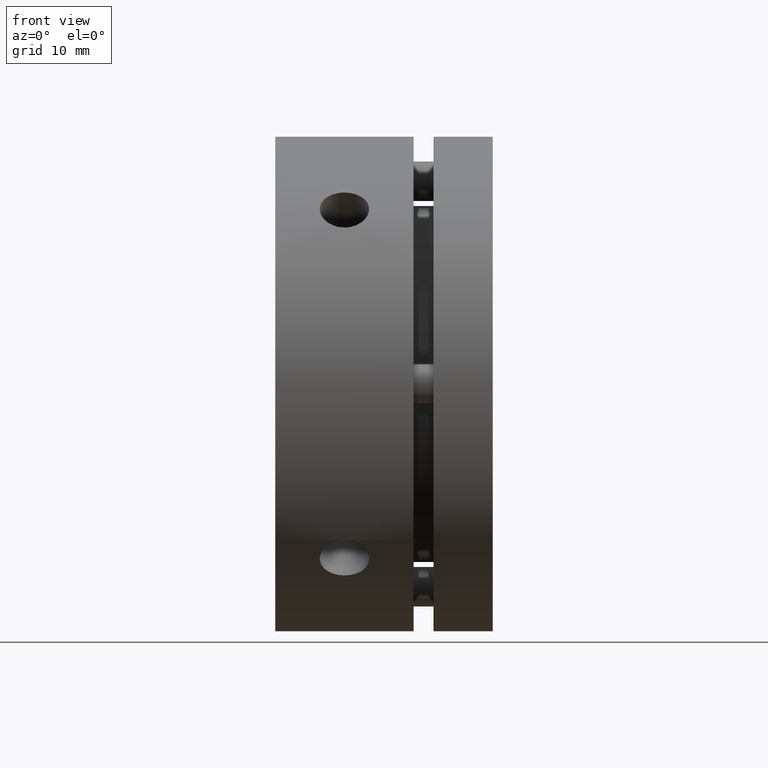
[diagram: clean part render]
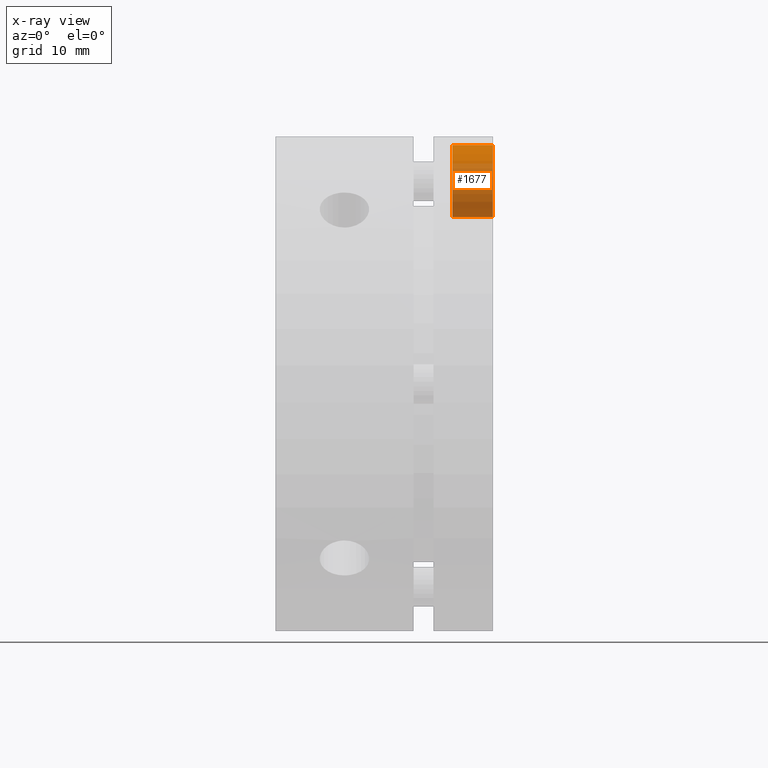
[diagram: x-ray — body ghosted, one internal face saturated and labeled with its STEP entity id]
A machine part, front view, then the same camera in x-ray: the body is ghosted and one INTERNAL B-rep face — a face not visible from any outside direction — is saturated and labeled: STEP entity #1677.
In plain terms, the highlighted cylindrical surface (edge-blend (fillet) strip) has radius 3.65 mm, axis along (1, 0, 0).
Its self-contained STEP definition (entity closure, byte-faithful):
#348 = ORIENTED_EDGE ( 'NONE', *, *, #1124, .F. ) ;
#349 = ORIENTED_EDGE ( 'NONE', *, *, #1128, .F. ) ;
#351 = ORIENTED_EDGE ( 'NONE', *, *, #1129, .T. ) ;
#353 = ORIENTED_EDGE ( 'NONE', *, *, #1133, .F. ) ;
#385 = AXIS2_PLACEMENT_3D ( 'NONE', #2657, #2655, #2653 ) ;
#750 = FACE_OUTER_BOUND ( 'NONE', #986, .T. ) ;
#759 = CYLINDRICAL_SURFACE ( 'NONE', #385, 3.650000000000000400 ) ;
#986 = EDGE_LOOP ( 'NONE', ( #353, #351, #349, #348 ) ) ;
#1124 = EDGE_CURVE ( 'NONE', #3327, #3325, #3551, .T. ) ;
#1128 = EDGE_CURVE ( 'NONE', #3325, #3324, #3545, .T. ) ;
#1129 = EDGE_CURVE ( 'NONE', #3330, #3324, #3544, .T. ) ;
#1133 = EDGE_CURVE ( 'NONE', #3330, #3327, #3541, .T. ) ;
#1677 = ADVANCED_FACE ( 'NONE', ( #750 ), #759, .F. ) ;
#1726 = AXIS2_PLACEMENT_3D ( 'NONE', #2314, #2315, #2316 ) ;
#1728 = AXIS2_PLACEMENT_3D ( 'NONE', #2301, #2302, #2303 ) ;
#2282 = DIRECTION ( 'NONE',  ( 1.000000000000000000, 0.0000000000000000000, 0.0000000000000000000 ) ) ;
#2283 = CARTESIAN_POINT ( 'NONE',  ( 19.94999999999999200, 0.0000000000000000000, 16.85000000000001600 ) ) ;
#2295 = CARTESIAN_POINT ( 'NONE',  ( 19.94999999999999200, 4.469960816887839400E-016, 24.15000000000001600 ) ) ;
#2296 = DIRECTION ( 'NONE',  ( 1.000000000000000000, 0.0000000000000000000, 0.0000000000000000000 ) ) ;
#2301 = CARTESIAN_POINT ( 'NONE',  ( 21.99999999999999300, 0.0000000000000000000, 20.50000000000001400 ) ) ;
#2302 = DIRECTION ( 'NONE',  ( -1.000000000000000000, -0.0000000000000000000, -0.0000000000000000000 ) ) ;
#2303 = DIRECTION ( 'NONE',  ( 0.0000000000000000000, 0.0000000000000000000, -1.000000000000000000 ) ) ;
#2314 = CARTESIAN_POINT ( 'NONE',  ( 17.89999999999999500, 0.0000000000000000000, 20.50000000000001400 ) ) ;
#2315 = DIRECTION ( 'NONE',  ( 1.000000000000000000, 0.0000000000000000000, 0.0000000000000000000 ) ) ;
#2316 = DIRECTION ( 'NONE',  ( 0.0000000000000000000, 0.0000000000000000000, -1.000000000000000000 ) ) ;
#2653 = DIRECTION ( 'NONE',  ( 0.0000000000000000000, 0.0000000000000000000, -1.000000000000000000 ) ) ;
#2655 = DIRECTION ( 'NONE',  ( 1.000000000000000000, 0.0000000000000000000, 0.0000000000000000000 ) ) ;
#2657 = CARTESIAN_POINT ( 'NONE',  ( 19.94999999999999200, 0.0000000000000000000, 20.50000000000001400 ) ) ;
#2723 = CARTESIAN_POINT ( 'NONE',  ( 21.99999999999999300, 4.469960816887838400E-016, 24.15000000000001600 ) ) ;
#2724 = CARTESIAN_POINT ( 'NONE',  ( 21.99999999999999300, 0.0000000000000000000, 16.85000000000001600 ) ) ;
#2726 = CARTESIAN_POINT ( 'NONE',  ( 17.89999999999999500, 0.0000000000000000000, 16.85000000000001600 ) ) ;
#2729 = CARTESIAN_POINT ( 'NONE',  ( 17.89999999999999500, 4.469960816887838400E-016, 24.15000000000001600 ) ) ;
#3324 = VERTEX_POINT ( 'NONE', #2723 ) ;
#3325 = VERTEX_POINT ( 'NONE', #2724 ) ;
#3327 = VERTEX_POINT ( 'NONE', #2726 ) ;
#3330 = VERTEX_POINT ( 'NONE', #2729 ) ;
#3541 = CIRCLE ( 'NONE', #1726, 3.650000000000000400 ) ;
#3542 = VECTOR ( 'NONE', #2296, 1000.000000000000000 ) ;
#3544 = LINE ( 'NONE', #2295, #3542 ) ;
#3545 = CIRCLE ( 'NONE', #1728, 3.650000000000000400 ) ;
#3549 = VECTOR ( 'NONE', #2282, 1000.000000000000000 ) ;
#3551 = LINE ( 'NONE', #2283, #3549 ) ;